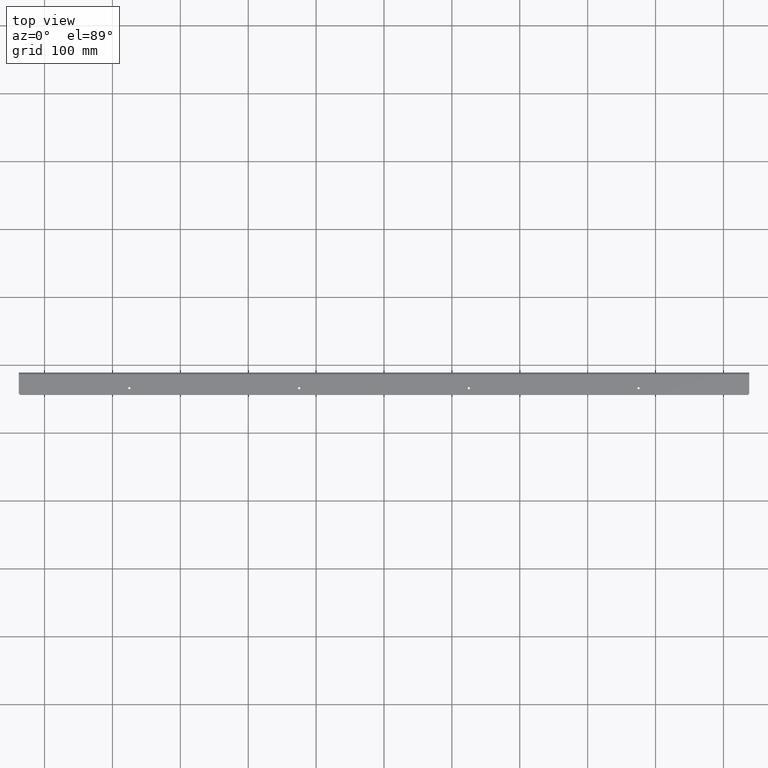
[diagram: clean part render]
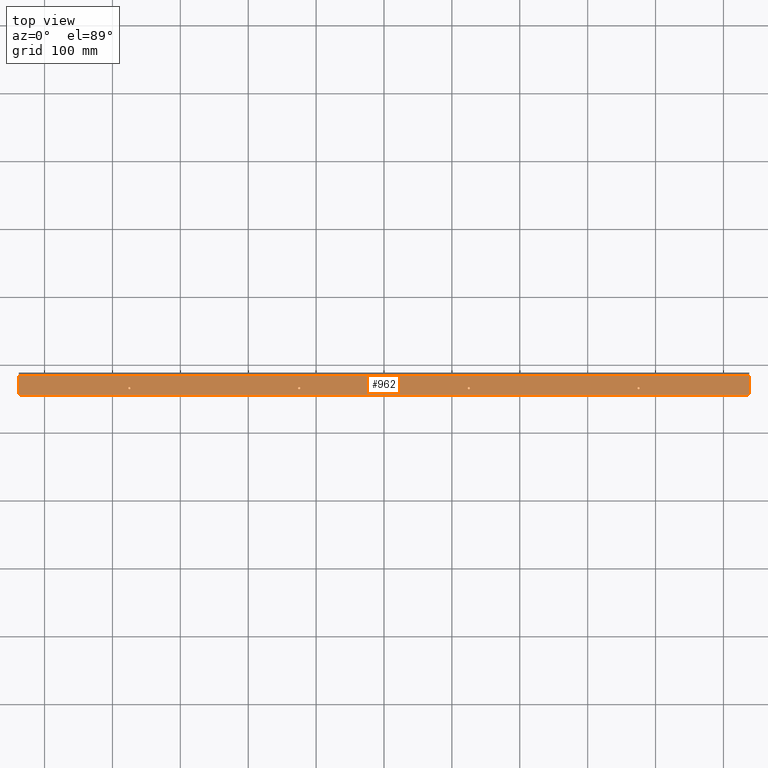
[diagram: same view with one face highlighted and labeled with its STEP entity id]
A machine part, top view. The second image highlights one B-rep face of the part: STEP entity #962.
In plain terms, the highlighted planar face has unit normal (0, 0, 1).
Its self-contained STEP definition (entity closure, byte-faithful):
#1 = CIRCLE ( 'NONE', #494, 1.599999999999990319 ) ;
#2 = VECTOR ( 'NONE', #366, 1000.000000000000000 ) ;
#9 = EDGE_CURVE ( 'NONE', #327, #34, #1, .T. ) ;
#10 = VERTEX_POINT ( 'NONE', #202 ) ;
#17 = CARTESIAN_POINT ( 'NONE',  ( 538.0000000000000000, 1084.305264068951146, 1257.499999999999545 ) ) ;
#34 = VERTEX_POINT ( 'NONE', #1089 ) ;
#35 = DIRECTION ( 'NONE',  ( 0.000000000000000000, 0.000000000000000000, 1.000000000000000000 ) ) ;
#39 = ORIENTED_EDGE ( 'NONE', *, *, #266, .F. ) ;
#40 = ORIENTED_EDGE ( 'NONE', *, *, #9, .F. ) ;
#77 = EDGE_CURVE ( 'NONE', #1156, #1039, #820, .T. ) ;
#83 = VERTEX_POINT ( 'NONE', #792 ) ;
#93 = DIRECTION ( 'NONE',  ( 1.000000000000000000, 0.000000000000000000, 0.000000000000000000 ) ) ;
#94 = CIRCLE ( 'NONE', #477, 1.600000000000101341 ) ;
#96 = DIRECTION ( 'NONE',  ( 1.000000000000000000, 0.000000000000000000, 0.000000000000000000 ) ) ;
#104 = DIRECTION ( 'NONE',  ( 0.000000000000000000, 0.000000000000000000, 1.000000000000000000 ) ) ;
#124 = VECTOR ( 'NONE', #457, 1000.000000000000000 ) ;
#161 = VERTEX_POINT ( 'NONE', #732 ) ;
#175 = CARTESIAN_POINT ( 'NONE',  ( 376.5999999999999659, 1065.305264068951374, 1257.499999999999773 ) ) ;
#183 = ORIENTED_EDGE ( 'NONE', *, *, #1161, .T. ) ;
#196 = EDGE_CURVE ( 'NONE', #34, #327, #373, .T. ) ;
#197 = LINE ( 'NONE', #597, #250 ) ;
#198 = CARTESIAN_POINT ( 'NONE',  ( -375.0000000000000000, 1065.305264068951374, 1257.499999999999773 ) ) ;
#199 = CARTESIAN_POINT ( 'NONE',  ( 534.9999999999998863, 1058.305264068951146, 1257.499999999999773 ) ) ;
#202 = CARTESIAN_POINT ( 'NONE',  ( -538.0000000000001137, 1084.305264068951146, 1257.499999999999545 ) ) ;
#218 = PLANE ( 'NONE',  #1078 ) ;
#223 = VERTEX_POINT ( 'NONE', #1159 ) ;
#230 = DIRECTION ( 'NONE',  ( -0.000000000000000000, -0.000000000000000000, -1.000000000000000000 ) ) ;
#231 = CARTESIAN_POINT ( 'NONE',  ( 605.0096185640381918, 1055.305264068951374, 1257.499999999999545 ) ) ;
#250 = VECTOR ( 'NONE', #1286, 1000.000000000000000 ) ;
#257 = EDGE_CURVE ( 'NONE', #223, #83, #886, .T. ) ;
#266 = EDGE_CURVE ( 'NONE', #161, #10, #654, .T. ) ;
#279 = CIRCLE ( 'NONE', #743, 2.999999999999891642 ) ;
#300 = EDGE_LOOP ( 'NONE', ( #183, #39, #979, #384, #1139, #406 ) ) ;
#302 = CARTESIAN_POINT ( 'NONE',  ( 534.9999999999998863, 1055.305264068951374, 1257.499999999999545 ) ) ;
#317 = DIRECTION ( 'NONE',  ( 0.000000000000000000, 0.000000000000000000, 1.000000000000000000 ) ) ;
#318 = LINE ( 'NONE', #947, #124 ) ;
#327 = VERTEX_POINT ( 'NONE', #175 ) ;
#329 = DIRECTION ( 'NONE',  ( 0.000000000000000000, 0.000000000000000000, 1.000000000000000000 ) ) ;
#333 = AXIS2_PLACEMENT_3D ( 'NONE', #570, #660, #865 ) ;
#365 = DIRECTION ( 'NONE',  ( 0.000000000000000000, 0.000000000000000000, 1.000000000000000000 ) ) ;
#366 = DIRECTION ( 'NONE',  ( -0.000000000000000000, 1.000000000000000000, 0.000000000000000000 ) ) ;
#368 = VERTEX_POINT ( 'NONE', #414 ) ;
#373 = CIRCLE ( 'NONE', #432, 1.599999999999990319 ) ;
#374 = EDGE_CURVE ( 'NONE', #399, #1276, #197, .T. ) ;
#384 = ORIENTED_EDGE ( 'NONE', *, *, #374, .F. ) ;
#396 = DIRECTION ( 'NONE',  ( 0.000000000000000000, 0.000000000000000000, 1.000000000000000000 ) ) ;
#399 = VERTEX_POINT ( 'NONE', #302 ) ;
#404 = VERTEX_POINT ( 'NONE', #1281 ) ;
#406 = ORIENTED_EDGE ( 'NONE', *, *, #1278, .F. ) ;
#409 = EDGE_LOOP ( 'NONE', ( #619, #921 ) ) ;
#414 = CARTESIAN_POINT ( 'NONE',  ( -126.6000000000001080, 1065.305264068951374, 1257.499999999999773 ) ) ;
#418 = ORIENTED_EDGE ( 'NONE', *, *, #257, .F. ) ;
#422 = CARTESIAN_POINT ( 'NONE',  ( 375.0000000000000000, 1065.305264068951374, 1257.499999999999773 ) ) ;
#432 = AXIS2_PLACEMENT_3D ( 'NONE', #422, #329, #1216 ) ;
#441 = DIRECTION ( 'NONE',  ( -0.000000000000000000, -0.000000000000000000, -1.000000000000000000 ) ) ;
#456 = CIRCLE ( 'NONE', #823, 1.599999999999990319 ) ;
#457 = DIRECTION ( 'NONE',  ( 0.000000000000000000, -1.000000000000000000, -0.000000000000000000 ) ) ;
#458 = CIRCLE ( 'NONE', #658, 1.600000000000101341 ) ;
#477 = AXIS2_PLACEMENT_3D ( 'NONE', #1301, #396, #93 ) ;
#478 = ORIENTED_EDGE ( 'NONE', *, *, #621, .F. ) ;
#481 = CARTESIAN_POINT ( 'NONE',  ( -537.9999999999998863, 1055.305264068951374, 1257.499999999999545 ) ) ;
#494 = AXIS2_PLACEMENT_3D ( 'NONE', #1208, #317, #681 ) ;
#503 = FACE_BOUND ( 'NONE', #836, .T. ) ;
#513 = LINE ( 'NONE', #786, #895 ) ;
#516 = CARTESIAN_POINT ( 'NONE',  ( 125.0000000000000000, 1065.305264068951374, 1257.499999999999773 ) ) ;
#540 = DIRECTION ( 'NONE',  ( 0.000000000000000000, 0.000000000000000000, 1.000000000000000000 ) ) ;
#570 = CARTESIAN_POINT ( 'NONE',  ( 125.0000000000000000, 1065.305264068951374, 1257.499999999999773 ) ) ;
#597 = CARTESIAN_POINT ( 'NONE',  ( 605.0096185640381918, 1055.305264068951374, 1257.499999999999545 ) ) ;
#611 = DIRECTION ( 'NONE',  ( 1.000000000000000000, 0.000000000000000000, 0.000000000000000000 ) ) ;
#619 = ORIENTED_EDGE ( 'NONE', *, *, #1132, .F. ) ;
#621 = EDGE_CURVE ( 'NONE', #83, #223, #1241, .T. ) ;
#637 = VERTEX_POINT ( 'NONE', #17 ) ;
#654 = LINE ( 'NONE', #481, #2 ) ;
#658 = AXIS2_PLACEMENT_3D ( 'NONE', #1041, #35, #1072 ) ;
#660 = DIRECTION ( 'NONE',  ( 0.000000000000000000, 0.000000000000000000, 1.000000000000000000 ) ) ;
#674 = AXIS2_PLACEMENT_3D ( 'NONE', #516, #540, #1112 ) ;
#681 = DIRECTION ( 'NONE',  ( 1.000000000000000000, 0.000000000000000000, 0.000000000000000000 ) ) ;
#732 = CARTESIAN_POINT ( 'NONE',  ( -537.9999999999998863, 1058.305264068951146, 1257.499999999999545 ) ) ;
#743 = AXIS2_PLACEMENT_3D ( 'NONE', #199, #230, #611 ) ;
#751 = DIRECTION ( 'NONE',  ( 1.000000000000000000, 0.000000000000000000, 0.000000000000000000 ) ) ;
#772 = ORIENTED_EDGE ( 'NONE', *, *, #196, .F. ) ;
#786 = CARTESIAN_POINT ( 'NONE',  ( 605.0096185640381918, 1084.305264068951146, 1257.499999999999545 ) ) ;
#792 = CARTESIAN_POINT ( 'NONE',  ( 123.3999999999999631, 1065.305264068951374, 1257.499999999999773 ) ) ;
#796 = FACE_BOUND ( 'NONE', #1254, .T. ) ;
#800 = CARTESIAN_POINT ( 'NONE',  ( -535.0000000000000000, 1055.305264068951374, 1257.499999999999545 ) ) ;
#804 = DIRECTION ( 'NONE',  ( 1.000000000000000000, 0.000000000000000000, 0.000000000000000000 ) ) ;
#807 = DIRECTION ( 'NONE',  ( -1.000000000000000000, -0.000000000000000000, -0.000000000000000000 ) ) ;
#819 = EDGE_CURVE ( 'NONE', #1039, #1156, #456, .T. ) ;
#820 = CIRCLE ( 'NONE', #988, 1.599999999999990319 ) ;
#823 = AXIS2_PLACEMENT_3D ( 'NONE', #945, #365, #751 ) ;
#836 = EDGE_LOOP ( 'NONE', ( #855, #1255 ) ) ;
#855 = ORIENTED_EDGE ( 'NONE', *, *, #819, .F. ) ;
#859 = EDGE_CURVE ( 'NONE', #368, #404, #94, .T. ) ;
#865 = DIRECTION ( 'NONE',  ( 1.000000000000000000, 0.000000000000000000, 0.000000000000000000 ) ) ;
#886 = CIRCLE ( 'NONE', #333, 1.600000000000018074 ) ;
#895 = VECTOR ( 'NONE', #807, 1000.000000000000000 ) ;
#899 = FACE_BOUND ( 'NONE', #409, .T. ) ;
#903 = VERTEX_POINT ( 'NONE', #1075 ) ;
#917 = DIRECTION ( 'NONE',  ( 0.000000000000000000, 0.000000000000000000, 1.000000000000000000 ) ) ;
#921 = ORIENTED_EDGE ( 'NONE', *, *, #859, .F. ) ;
#932 = CIRCLE ( 'NONE', #1227, 2.999999999999891642 ) ;
#945 = CARTESIAN_POINT ( 'NONE',  ( -375.0000000000000000, 1065.305264068951374, 1257.499999999999773 ) ) ;
#947 = CARTESIAN_POINT ( 'NONE',  ( 538.0000000000000000, 1055.305264068951374, 1257.499999999999545 ) ) ;
#962 = ADVANCED_FACE ( 'NONE', ( #503, #899, #796, #1196, #1101 ), #218, .T. ) ;
#965 = EDGE_CURVE ( 'NONE', #1276, #161, #932, .T. ) ;
#979 = ORIENTED_EDGE ( 'NONE', *, *, #965, .F. ) ;
#988 = AXIS2_PLACEMENT_3D ( 'NONE', #198, #104, #96 ) ;
#1027 = CARTESIAN_POINT ( 'NONE',  ( -534.9999999999998863, 1058.305264068951146, 1257.499999999999773 ) ) ;
#1039 = VERTEX_POINT ( 'NONE', #1118 ) ;
#1041 = CARTESIAN_POINT ( 'NONE',  ( -125.0000000000000000, 1065.305264068951374, 1257.499999999999773 ) ) ;
#1072 = DIRECTION ( 'NONE',  ( 1.000000000000000000, 0.000000000000000000, 0.000000000000000000 ) ) ;
#1075 = CARTESIAN_POINT ( 'NONE',  ( 537.9999999999997726, 1058.305264068951146, 1257.499999999999545 ) ) ;
#1078 = AXIS2_PLACEMENT_3D ( 'NONE', #231, #917, #1213 ) ;
#1089 = CARTESIAN_POINT ( 'NONE',  ( 373.4000000000000341, 1065.305264068951374, 1257.499999999999773 ) ) ;
#1101 = FACE_OUTER_BOUND ( 'NONE', #300, .T. ) ;
#1112 = DIRECTION ( 'NONE',  ( 1.000000000000000000, 0.000000000000000000, 0.000000000000000000 ) ) ;
#1118 = CARTESIAN_POINT ( 'NONE',  ( -373.4000000000000341, 1065.305264068951374, 1257.499999999999773 ) ) ;
#1132 = EDGE_CURVE ( 'NONE', #404, #368, #458, .T. ) ;
#1139 = ORIENTED_EDGE ( 'NONE', *, *, #1210, .F. ) ;
#1156 = VERTEX_POINT ( 'NONE', #1209 ) ;
#1159 = CARTESIAN_POINT ( 'NONE',  ( 126.6000000000000227, 1065.305264068951374, 1257.499999999999773 ) ) ;
#1161 = EDGE_CURVE ( 'NONE', #637, #10, #513, .T. ) ;
#1194 = EDGE_LOOP ( 'NONE', ( #40, #772 ) ) ;
#1196 = FACE_BOUND ( 'NONE', #1194, .T. ) ;
#1208 = CARTESIAN_POINT ( 'NONE',  ( 375.0000000000000000, 1065.305264068951374, 1257.499999999999773 ) ) ;
#1209 = CARTESIAN_POINT ( 'NONE',  ( -376.5999999999999659, 1065.305264068951374, 1257.499999999999773 ) ) ;
#1210 = EDGE_CURVE ( 'NONE', #903, #399, #279, .T. ) ;
#1213 = DIRECTION ( 'NONE',  ( 1.000000000000000000, 0.000000000000000000, -0.000000000000000000 ) ) ;
#1216 = DIRECTION ( 'NONE',  ( 1.000000000000000000, 0.000000000000000000, 0.000000000000000000 ) ) ;
#1227 = AXIS2_PLACEMENT_3D ( 'NONE', #1027, #441, #804 ) ;
#1241 = CIRCLE ( 'NONE', #674, 1.600000000000018074 ) ;
#1254 = EDGE_LOOP ( 'NONE', ( #418, #478 ) ) ;
#1255 = ORIENTED_EDGE ( 'NONE', *, *, #77, .F. ) ;
#1276 = VERTEX_POINT ( 'NONE', #800 ) ;
#1278 = EDGE_CURVE ( 'NONE', #637, #903, #318, .T. ) ;
#1281 = CARTESIAN_POINT ( 'NONE',  ( -123.3999999999998920, 1065.305264068951374, 1257.499999999999773 ) ) ;
#1286 = DIRECTION ( 'NONE',  ( -1.000000000000000000, -0.000000000000000000, 0.000000000000000000 ) ) ;
#1301 = CARTESIAN_POINT ( 'NONE',  ( -125.0000000000000000, 1065.305264068951374, 1257.499999999999773 ) ) ;